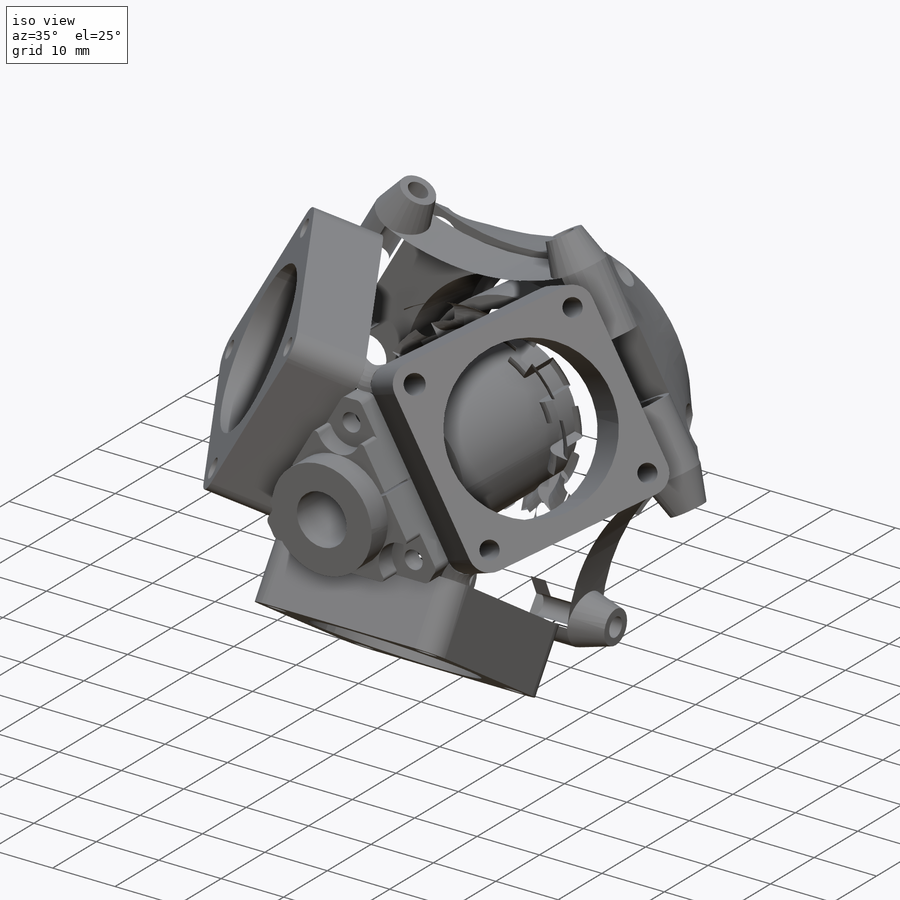
[diagram: iso view]
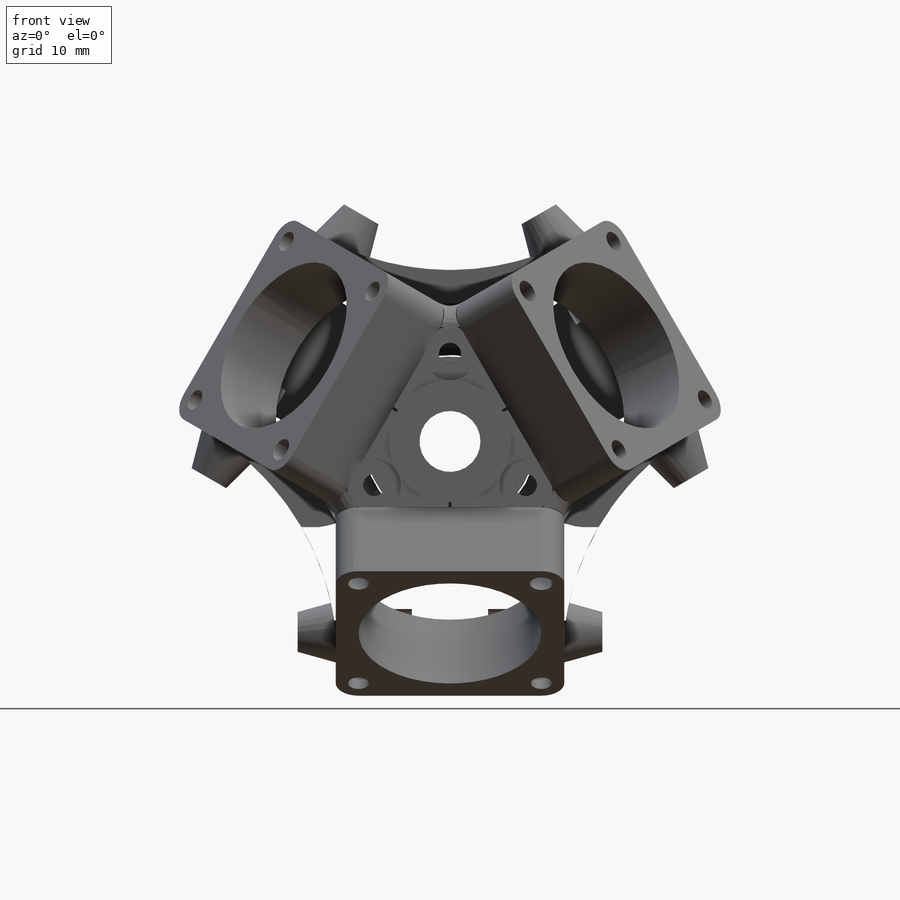
[diagram: front view]
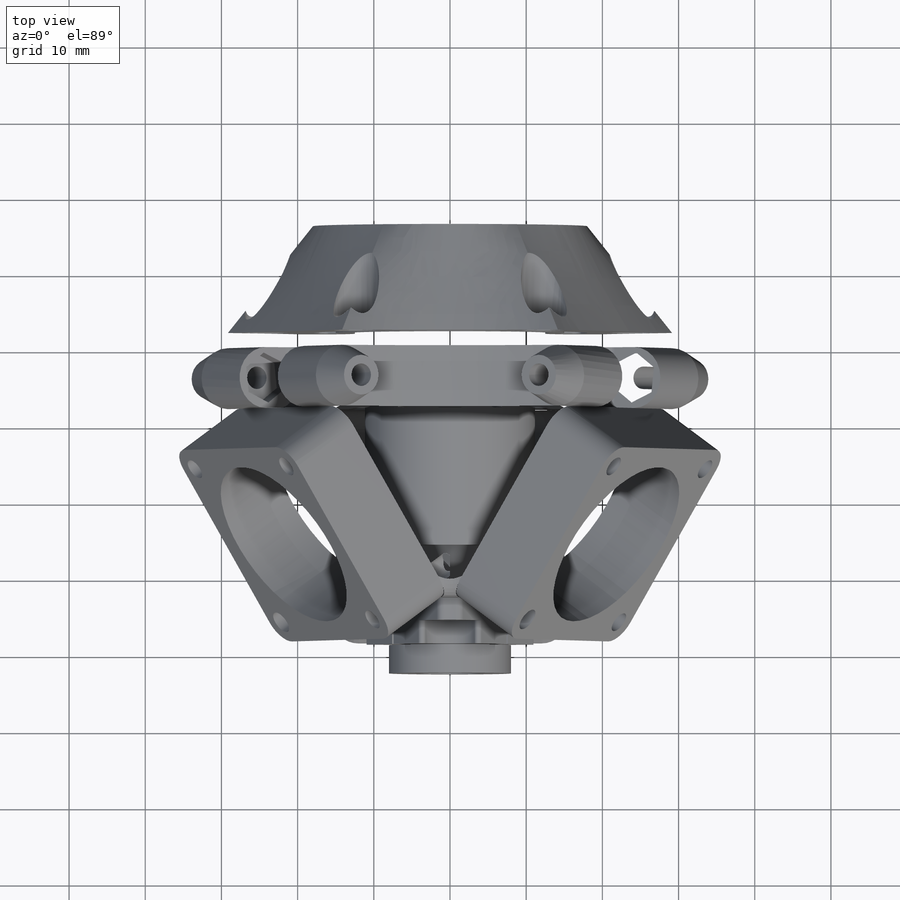
[diagram: top view]
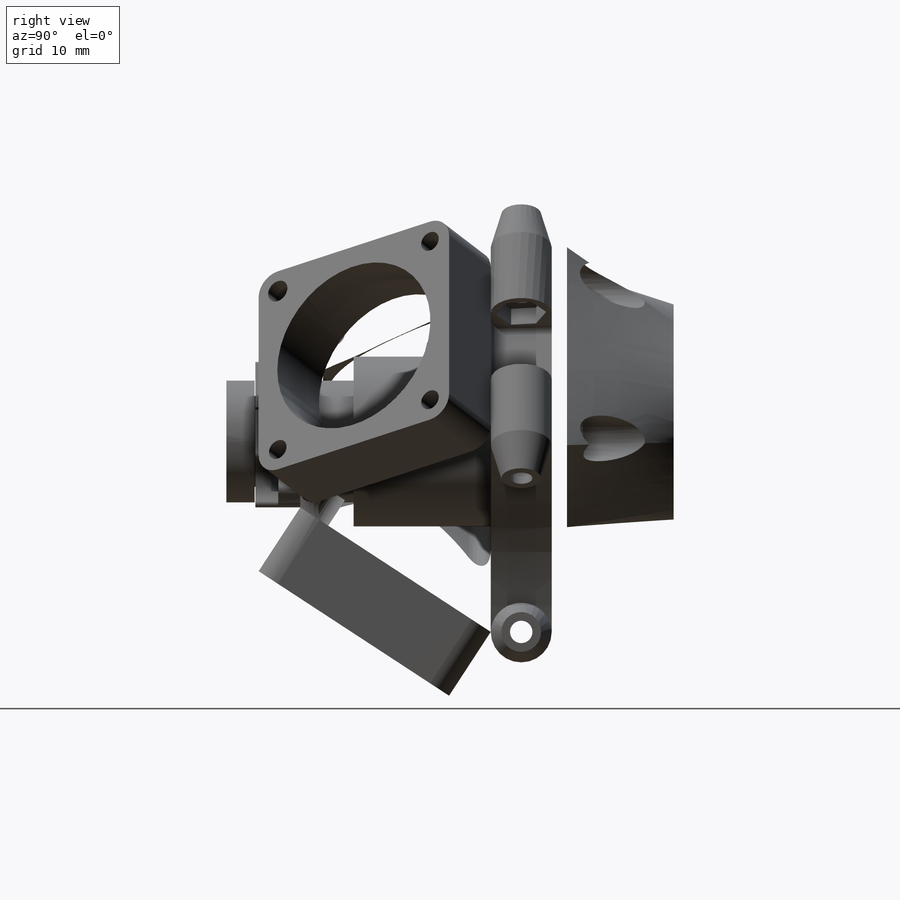
[diagram: right view]
SOLIDWORKS PART (.sldprt)
format: sldprt  version: not decoded by parser v0  size: 2,858,496 bytes
history: native  units: mm
features: sketch x49, fillet x47, cut_extrude x19, plane x10, extrude x10, pattern_circular x4, boolean_combine x2, material x1, revolve x1, cut_revolve x1 (+18 scaffold rows collapsed; 8 parser-record rows omitted)
feature tree (170):
  scaffold x18  (default folders/planes/origin — collapsed)
  material  "Materiale <non specificato>"
  plane  "Piano frontale"
  plane  "Piano superiore"
  plane  "Piano destro"
  sketch  "Schizzo1"  dims[c1.D1=22.7mm c1.D2=40.0mm c1.D3=3.0mm c1.D6=~41.569219mm c1.D17=150.0mm c1.D18=150.0mm c1.D19=150.0mm c1.D11=75.0mm c1.D4=12.5mm c1.D5=40.0mm c2.D6=20.0mm c2.D7=20.0mm c2.D5=30.0mm c3.D6=30.0mm c3.D7=30.0mm c3.D8=25.0mm c3.D9=25.0mm c3.D10=25.0mm c3.D11=20.0mm c3.D12=20.0mm c3.D13=20.0mm c3.D14=20.0mm c3.D15=20.0mm c3.D16=20.0mm]
  extrude  "Estrusione-Estrusione4"  Depth=8mm
  sketch  "Schizzo7"
  revolve  "Rivoluzione2"  Angle=360deg
  sketch  "Schizzo21"  dims[c1.D1=1.0mm c1.D2=1.0mm c2.D1=5.0mm c2.D2=5.0mm c2.D3=4.0mm]
  sketch  "Sketch4"
  extrude  "Boss-Extrude2"  Depth=5mm
  sketch  "Sketch5"
  extrude  "Boss-Extrude3"  Depth=5mm
  sketch  "Sketch6"  dims[D1=2.95mm]
  cut_extrude  "Cut-Extrude6"  [1 undecoded]
  pattern_circular  "CirPattern14"  Count=3 Angle=120deg
  cut_extrude  "Cut-Extrude7"  [1 undecoded]
  sketch  "Schizzo22"  dims[D1=5.7mm]
  cut_extrude  "Taglio-Estrusione1"  Depth=2.4mm
  sketch  "Schizzo23"  dims[D1=5.7mm]
  cut_extrude  "Taglio-Estrusione2"  Depth=2.4mm
  sketch  "Schizzo24"  dims[c1.D1=26.0mm c1.D2=1.5mm c1.D3=1.5mm c2.D2=11.0]
  cut_extrude  "Taglio-Estrusione3"  Depth=7mm
  pattern_circular  "RipetizioneCircolare11"  Count=3 Angle=120deg
  parser-record x8  (decoder bookkeeping rows leaked as tree rows — omitted from the tree; the rows remain in map.json)
  fillet  "Raccordo6"  Radius=3mm
  fillet  "Raccordo7"  Radius=3mm
  fillet  "Raccordo8"  Radius=3mm
  fillet  "Raccordo9"  Radius=3mm
  fillet  "Raccordo10"  Radius=3mm
  fillet  "Raccordo11"  Radius=3mm
  fillet  "Raccordo12"  Radius=3mm
  fillet  "Raccordo13"  Radius=3mm
  fillet  "Raccordo14"  Radius=3mm
  fillet  "Raccordo15"  Radius=3mm
  fillet  "Raccordo16"  Radius=3mm
  fillet  "Raccordo17"  Radius=2mm
  fillet  "Raccordo18"  Radius=2mm
  fillet  "Raccordo19"  Radius=2mm
  fillet  "Raccordo20"  Radius=2mm
  fillet  "Raccordo21"  Radius=2mm
  fillet  "Raccordo22"  Radius=2mm
  fillet  "Raccordo23"  Radius=2mm
  fillet  "Raccordo24"  Radius=2mm
  fillet  "Raccordo25"  Radius=2mm
  fillet  "Raccordo26"  Radius=2mm
  fillet  "Raccordo27"  Radius=2mm
  fillet  "Raccordo28"  Radius=1mm
  fillet  "Raccordo29"  Radius=1mm
  fillet  "Raccordo30"  Radius=1mm
  fillet  "Raccordo31"  Radius=1mm
  fillet  "Raccordo32"  Radius=1mm
  fillet  "Raccordo33"  Radius=1mm
  fillet  "Raccordo34"  Radius=1mm
  fillet  "Raccordo35"  Radius=1mm
  fillet  "Raccordo36"  Radius=1mm
  fillet  "Raccordo37"  Radius=1mm
  fillet  "Raccordo38"  Radius=1mm
  sketch  "Schizzo27"  dims[c1.D1=~16.060528mm c2.D1=120.0deg c2.D2=18.0mm c3.D2=120.0deg c3.D3=3.0mm c3.D4=3.0mm c3.D1=3.0mm c4.D2=3.0mm]
  cut_extrude  "Taglio-Estrusione4"  [1 undecoded]
  sketch  "Schizzo28"  dims[c1.D4=~38.679187mm c1.D1=15.0mm c1.D2=~13.259323mm c2.D2=104.5deg c3.D2=15.0mm c3.D1=15.0mm c4.D2=15.0mm c4.D1=3.0]
  sketch  "Schizzo29"  dims[D1=22.3mm]
  extrude  "Estrusione-Estrusione5"  Depth=26mm
  sketch  "Schizzo30"  dims[D1=16.0mm]
  extrude  "Estrusione-Estrusione8"  Depth=7mm
  sketch  "Schizzo37"  dims[D1=12.0mm]
  extrude  "Estrusione-Estrusione10"  Depth=6mm
  sketch  "Schizzo38"  dims[D1=16.0mm]
  extrude  "Estrusione-Estrusione11"  Depth=3.7mm
  sketch  "Schizzo40"  dims[D1=8.0mm]
  cut_extrude  "Taglio-Estrusione8"  [1 undecoded]
  plane  "Piano1"  Offset=25mm
  sketch  "Schizzo31"  dims[c1.D4=16.0mm c1.D5=16.0mm c1.D1=15.0mm c1.D2=~12.137054mm c2.D1=15.0mm c2.D2=15.0mm c2.D3=20.0mm c2.D4=20.0mm c2.D5=20.0mm c3.D1=10.0mm c3.D2=10.0mm c3.D3=10.0mm c3.D5=30.0mm]
  sketch  "Schizzo3D1"
  sketch  "Schizzo3D2"
  sketch  "Schizzo3D3"
  sketch  "Schizzo3D4"
  sketch  "Schizzo3D6"
  sketch  "Schizzo33"  dims[D1=16.0mm]
  sketch  "Schizzo28<2821>"
  sketch  "Schizzo34"  dims[D1=24.0mm]
  cut_extrude  "Taglio-Estrusione5"  [1 undecoded]
  sketch  "Schizzo35"  dims[D1=24.0mm]
  cut_extrude  "Taglio-Estrusione6"  [1 undecoded]
  sketch  "Schizzo36"  dims[D1=24.0mm]
  cut_extrude  "Taglio-Estrusione7"  [1 undecoded]
  sketch  "Schizzo41"  dims[D1=2.9mm D2=2.9mm D3=2.9mm]
  cut_extrude  "Taglio-Estrusione9"  Depth=20mm
  fillet  "Raccordo41"  Radius=2mm
  fillet  "Raccordo42"  Radius=2mm
  fillet  "Raccordo43"  Radius=2mm
  fillet  "Raccordo44"  Radius=2mm
  sketch  "Schizzo44"  dims[c1.D1=2.9mm c1.D2=2.9mm c1.D3=2.9mm c1.D4=2.9mm c2.D1=~29.866156mm]
  cut_extrude  "Taglio-Estrusione13"  Depth=4mm
  sketch  "Schizzo47"  dims[c1.D1=2.9mm c1.D2=2.9mm c1.D3=~2.971296mm c2.D3=2.9mm c2.D4=2.9mm]
  cut_extrude  "Taglio-Estrusione14"  Depth=4mm
  sketch  "Schizzo48"  dims[c1.D1=2.9mm c1.D2=~3.002452mm c2.D2=2.9mm c2.D3=2.9mm c2.D4=2.9mm]
  cut_extrude  "Taglio-Estrusione15"  Depth=4mm
  fillet  "Raccordo48"  Radius=3mm
  fillet  "Raccordo49"  Radius=3mm
  fillet  "Raccordo50"  Radius=3mm
  sketch  "Schizzo49"  dims[D1=3.0mm]
  extrude  "Estrusione-Estrusione13"  Depth=10mm
  pattern_circular  "RipetizioneCircolare13"  Count=3 Angle=120deg
  sketch  "Schizzo50"  dims[c1.D1=12.5mm c1.D2=~12.147766mm c1.D3=~12.147766mm c2.D2=0.2mm c2.D3=0.2mm]
  extrude  "Estrusione-Estrusione15"  Depth=5.9mm
  sketch  "Schizzo51"  dims[D1=7.0mm D2=6.0mm]
  cut_extrude  "Taglio-Estrusione16"  Depth=3mm
  fillet  "Raccordo55"  Radius=0.5mm
  fillet  "Raccordo56"  Radius=0.5mm
  fillet  "Raccordo57"  Radius=1mm
  fillet  "Raccordo58"  Radius=1mm
  plane  "Piano2"  Offset=30mm
  sketch  "Schizzo54"  dims[c1.D1=16.0mm c1.D2=18.8mm c2.D1=25.0mm]
  sketch  "Schizzo55"
  sketch  "Schizzo3D7"
  sketch  "Schizzo56"  dims[D1=16.2mm]
  cut_extrude  "Taglio-Estrusione17"  Depth=3mm
  plane  "Piano3"  Offset=30mm
  sketch  "Schizzo57"  dims[c1.D3=0.5mm c1.D4=0.5mm c1.D2=11.0mm c1.D1=0.8mm c2.D2=0.8mm c2.D1=8.0]
  cut_extrude  "Taglio-Estrusione18"  Depth=0.8mm
  pattern_circular  "RipetizioneCircolare14"  Count=3 Angle=120deg
  boolean_combine  "Combine1"
  fillet  "Fillet1"  Radius=2mm
  fillet  "Fillet2"  Radius=2mm
  sketch  "Sketch18"  dims[c1.D1=40.0mm c1.D2=26.0mm c2.D1=5.0mm c2.D2=5.0mm c3.D1=25.0mm c3.D3=1.0mm c3.D4=1.0mm c3.D2=12.5mm c4.D3=12.5mm]
  extrude  "Boss-Extrude12"  Depth=2mm
  sketch  "Sketch20"  dims[c1.D1=3.0mm c1.D2=3.0mm c1.D3=3.0mm c1.D4=3.0mm c1.D5=3.0mm c1.D6=3.0mm c1.D7=3.0mm c1.D8=3.0mm c2.D1=3.0mm c2.D2=3.0mm c2.D3=3.0mm c3.D1=5.0mm c3.D2=~3.549862mm c3.D4=3.55mm c3.D6=3.55mm c3.D7=23.5mm c4.D2=3.55mm c4.D3=23.5mm c4.D1=50.5mm]
  plane  "Plane2"  Offset=16mm
  sketch  "Sketch21"  dims[D1=~18.425976mm]
  sketch  "3DSketch1"
  sketch  "Sketch22"  dims[c1.D1=~7.888931mm c1.D2=6.0mm c2.D1=6.0mm c2.D3=6.0mm c2.D4=6.0mm c2.D5=6.0mm c2.D6=6.0mm c3.D1=4.7mm c3.D3=~1.914274mm c3.D4=4.7mm c4.D1=~24.271552mm c4.D5=4.07mm]
  cut_extrude  "Cut-Extrude11"  [1 undecoded]
  plane  "Plane3"  Offset=15mm
  sketch  "Sketch24"  dims[D1=34.0mm D2=28.0mm D4=1.0mm]
  plane  "Plane4"  Offset=2mm
  sketch  "Sketch25"  dims[D1=1.0mm]
  sketch  "3DSketch3"
  boolean_combine  "Cut-Loft7"
  plane  "Plane5"  Offset=10mm
  sketch  "Sketch27"  dims[D1=36.5mm]
  cut_revolve  "Cut-Revolve7"  Angle=360deg
  fillet  "Fillet6"  Radius=0.9mm
  sketch  "Sketch28"  dims[D1=3.0mm D2=3.0mm D3=3.0mm D4=3.0mm]
  cut_extrude  "Cut-Extrude12"  Depth=6mm
decode coverage: 110 of 133 modeling features carry decoded parameters
note: ~ marks probable driven/reference dimensions
note: 8 parameter values undecoded
summary: no parameter record found for 8 features
note: suppression state not decoded; provenance and decode notes live in map.json
